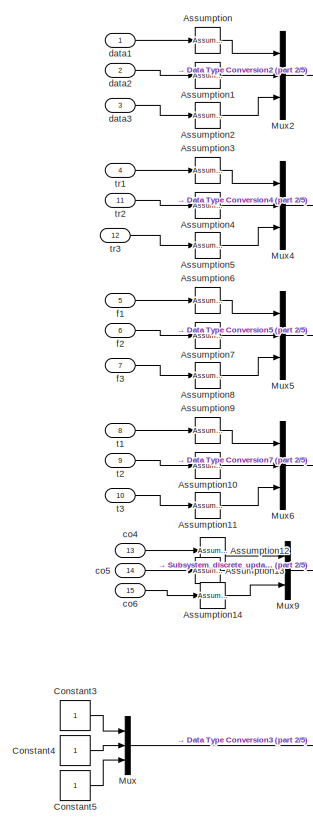
[diagram: root canvas - part 1/5, left side, full height]
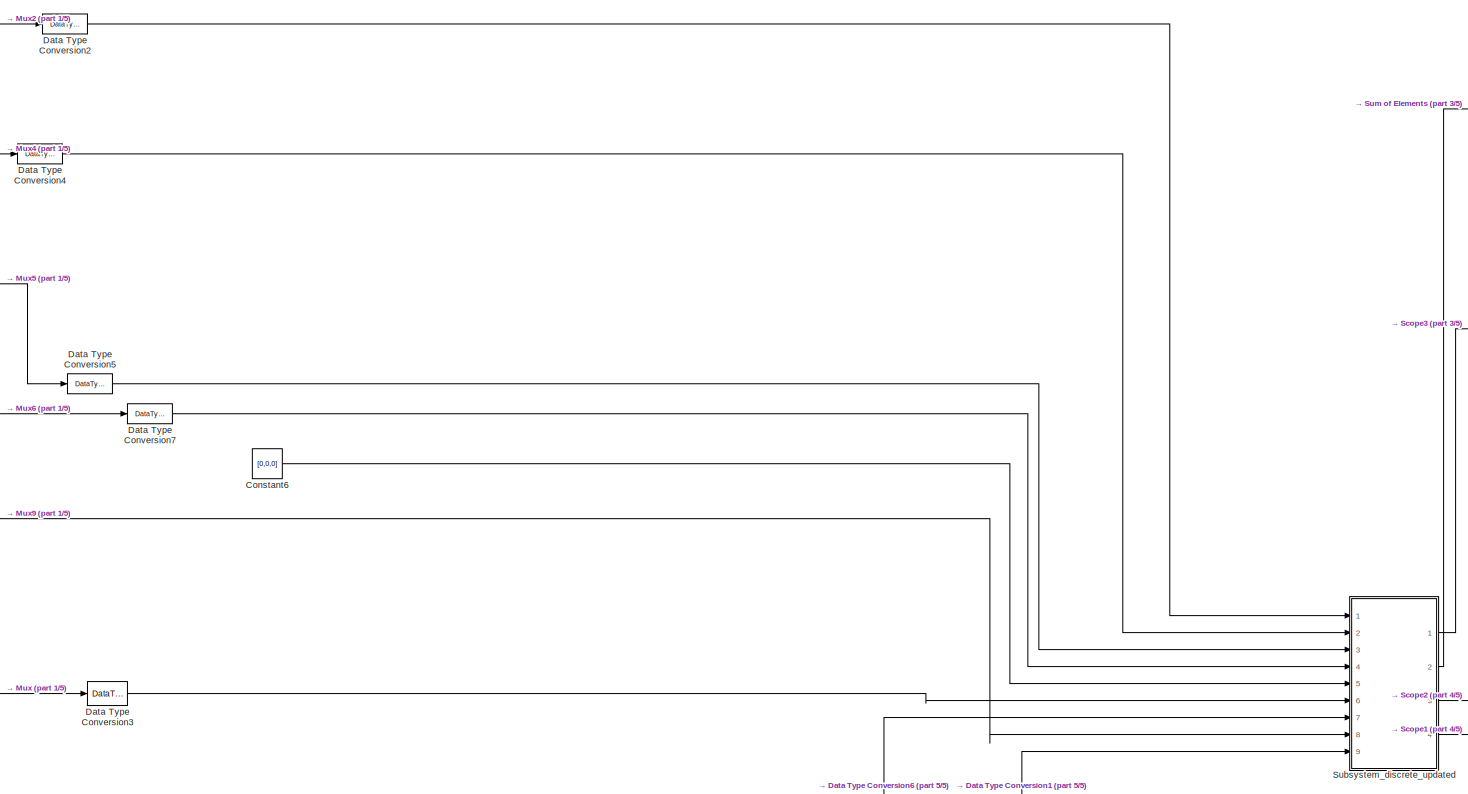
[diagram: root canvas - part 2/5, central region]
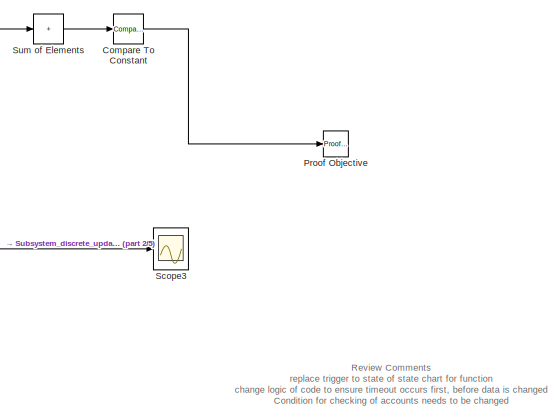
[diagram: root canvas - part 3/5, top right region]
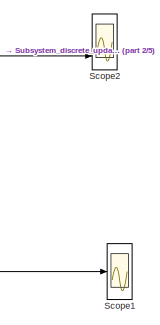
[diagram: root canvas - part 4/5, bottom right region]
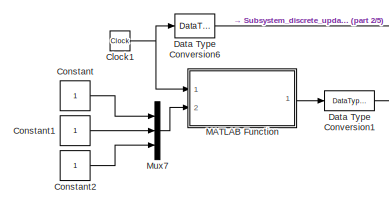
[diagram: root canvas - part 5/5, bottom left region]
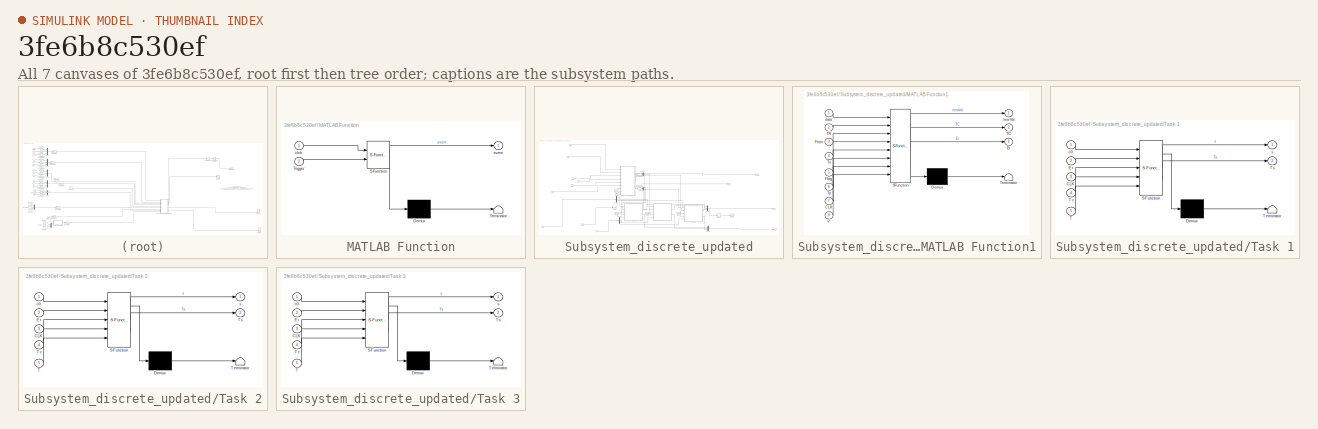
[diagram: thumbnail index - all 7 canvases of the model, root first then tree order]
MODEL slx_3fe6b8c530ef
KIND model
CONFIG AbsTol = auto
CONFIG EnableMultiTasking = off
CONFIG FixedStep = 1
CONFIG MaxStep = auto
CONFIG MinStep = auto
CONFIG RelTol = 1e-3
CONFIG SampleTimeConstraint = Unconstrained
CONFIG SolverName = FixedStepDiscrete
CONFIG StartTime = 0.0
CONFIG StopTime = 10.0
BLOCK [Reference] Assumption  REF=sldvlib/Objectives and Constraints/Assumption
  AttributesFormatString = %<intervals>
  NameLocation = top
  Ports = [1, 1]
  SourceBlock = sldvlib/Objectives and Constraints/Assumption
  SourceProductBaseCode = SL
  SourceType = Design Verifier Assumption
BLOCK [Reference] Assumption1  REF=sldvlib/Objectives and Constraints/Assumption
  AttributesFormatString = %<intervals>
  NameLocation = top
  Ports = [1, 1]
  SourceBlock = sldvlib/Objectives and Constraints/Assumption
  SourceProductBaseCode = SL
  SourceType = Design Verifier Assumption
BLOCK [Reference] Assumption10  REF=sldvlib/Objectives and Constraints/Assumption
  AttributesFormatString = %<intervals>
  NameLocation = top
  Ports = [1, 1]
  SourceBlock = sldvlib/Objectives and Constraints/Assumption
  SourceProductBaseCode = SL
  SourceType = Design Verifier Assumption
BLOCK [Reference] Assumption11  REF=sldvlib/Objectives and Constraints/Assumption
  AttributesFormatString = %<intervals>
  NameLocation = top
  Ports = [1, 1]
  SourceBlock = sldvlib/Objectives and Constraints/Assumption
  SourceProductBaseCode = SL
  SourceType = Design Verifier Assumption
BLOCK [Reference] Assumption12  REF=sldvlib/Objectives and Constraints/Assumption
  AttributesFormatString = %<intervals>
  NameLocation = top
  Ports = [1, 1]
  SourceBlock = sldvlib/Objectives and Constraints/Assumption
  SourceProductBaseCode = SL
  SourceType = Design Verifier Assumption
BLOCK [Reference] Assumption13  REF=sldvlib/Objectives and Constraints/Assumption
  AttributesFormatString = %<intervals>
  NameLocation = top
  Ports = [1, 1]
  SourceBlock = sldvlib/Objectives and Constraints/Assumption
  SourceProductBaseCode = SL
  SourceType = Design Verifier Assumption
BLOCK [Reference] Assumption14  REF=sldvlib/Objectives and Constraints/Assumption
  AttributesFormatString = %<intervals>
  NameLocation = top
  Ports = [1, 1]
  SourceBlock = sldvlib/Objectives and Constraints/Assumption
  SourceProductBaseCode = SL
  SourceType = Design Verifier Assumption
BLOCK [Reference] Assumption2  REF=sldvlib/Objectives and Constraints/Assumption
  AttributesFormatString = %<intervals>
  NameLocation = top
  Ports = [1, 1]
  SourceBlock = sldvlib/Objectives and Constraints/Assumption
  SourceProductBaseCode = SL
  SourceType = Design Verifier Assumption
BLOCK [Reference] Assumption3  REF=sldvlib/Objectives and Constraints/Assumption
  AttributesFormatString = %<intervals>
  NameLocation = top
  Ports = [1, 1]
  SourceBlock = sldvlib/Objectives and Constraints/Assumption
  SourceProductBaseCode = SL
  SourceType = Design Verifier Assumption
BLOCK [Reference] Assumption4  REF=sldvlib/Objectives and Constraints/Assumption
  AttributesFormatString = %<intervals>
  NameLocation = top
  Ports = [1, 1]
  SourceBlock = sldvlib/Objectives and Constraints/Assumption
  SourceProductBaseCode = SL
  SourceType = Design Verifier Assumption
BLOCK [Reference] Assumption5  REF=sldvlib/Objectives and Constraints/Assumption
  AttributesFormatString = %<intervals>
  NameLocation = top
  Ports = [1, 1]
  SourceBlock = sldvlib/Objectives and Constraints/Assumption
  SourceProductBaseCode = SL
  SourceType = Design Verifier Assumption
BLOCK [Reference] Assumption6  REF=sldvlib/Objectives and Constraints/Assumption
  AttributesFormatString = %<intervals>
  NameLocation = top
  Ports = [1, 1]
  SourceBlock = sldvlib/Objectives and Constraints/Assumption
  SourceProductBaseCode = SL
  SourceType = Design Verifier Assumption
BLOCK [Reference] Assumption7  REF=sldvlib/Objectives and Constraints/Assumption
  AttributesFormatString = %<intervals>
  NameLocation = top
  Ports = [1, 1]
  SourceBlock = sldvlib/Objectives and Constraints/Assumption
  SourceProductBaseCode = SL
  SourceType = Design Verifier Assumption
BLOCK [Reference] Assumption8  REF=sldvlib/Objectives and Constraints/Assumption
  AttributesFormatString = %<intervals>
  NameLocation = top
  Ports = [1, 1]
  SourceBlock = sldvlib/Objectives and Constraints/Assumption
  SourceProductBaseCode = SL
  SourceType = Design Verifier Assumption
BLOCK [Reference] Assumption9  REF=sldvlib/Objectives and Constraints/Assumption
  AttributesFormatString = %<intervals>
  NameLocation = top
  Ports = [1, 1]
  SourceBlock = sldvlib/Objectives and Constraints/Assumption
  SourceProductBaseCode = SL
  SourceType = Design Verifier Assumption
BLOCK [Clock] Clock1
BLOCK [Reference] Compare To Constant  REF=simulink/Logic and Bit
Operations/Compare
To Constant
  Ports = [1, 1]
  SourceBlock = simulink/Logic and Bit\nOperations/Compare\nTo Constant
  SourceProductBaseCode = SL
  SourceType = Compare To Constant
BLOCK [Constant] Constant
BLOCK [Constant] Constant1
BLOCK [Constant] Constant2
BLOCK [Constant] Constant3
BLOCK [Constant] Constant4
BLOCK [Constant] Constant5
BLOCK [Constant] Constant6
  Value = [0,0,0]
BLOCK [DataTypeConversion] Data Type Conversion1
  OutDataTypeStr = boolean
  RndMeth = Round
  SaturateOnIntegerOverflow = off
BLOCK [DataTypeConversion] Data Type Conversion2
  OutDataTypeStr = double
  RndMeth = Round
  SaturateOnIntegerOverflow = off
BLOCK [DataTypeConversion] Data Type Conversion3
  OutDataTypeStr = uint16
  RndMeth = Round
  SaturateOnIntegerOverflow = off
BLOCK [DataTypeConversion] Data Type Conversion4
  OutDataTypeStr = double
  RndMeth = Round
  SaturateOnIntegerOverflow = off
BLOCK [DataTypeConversion] Data Type Conversion5
  OutDataTypeStr = double
  RndMeth = Round
  SaturateOnIntegerOverflow = off
BLOCK [DataTypeConversion] Data Type Conversion6
  OutDataTypeStr = uint16
  RndMeth = Round
  SaturateOnIntegerOverflow = off
BLOCK [DataTypeConversion] Data Type Conversion7
  OutDataTypeStr = double
  RndMeth = Round
  SaturateOnIntegerOverflow = off
BLOCK [SubSystem] MATLAB Function
  ErrorFcn = Stateflow.Translate.translate
  PermitHierarchicalResolution = ExplicitOnly
  Ports = [2, 1]
  RequestExecContextInheritance = off
  SFBlockType = MATLAB Function
  TreatAsAtomicUnit = on
BLOCK [Demux] MATLAB Function/ Demux 
  Outputs = 1
  Ports = [1, 1]
BLOCK [S-Function] MATLAB Function/ SFunction 
  EnableBusSupport = on
  FunctionName = sf_sfun
  PortCounts = [2 2]
  Ports = [2, 2]
  SFcnIsStateOwnerBlock = off
  SFunctionDeploymentMode = off
  Tag = Stateflow S-Function 2
BLOCK [Terminator] MATLAB Function/ Terminator 
BLOCK [Inport] MATLAB Function/Trigger
  Port = 2
BLOCK [Inport] MATLAB Function/clck
BLOCK [Outport] MATLAB Function/event
BLOCK [Mux] Mux
  DisplayOption = bar
  Inputs = 3
  Ports = [3, 1]
BLOCK [Mux] Mux2
  DisplayOption = bar
  Inputs = 3
  Ports = [3, 1]
BLOCK [Mux] Mux4
  DisplayOption = bar
  Inputs = 3
  Ports = [3, 1]
BLOCK [Mux] Mux5
  DisplayOption = bar
  Inputs = 3
  Ports = [3, 1]
BLOCK [Mux] Mux6
  DisplayOption = bar
  Inputs = 3
  Ports = [3, 1]
BLOCK [Mux] Mux7
  DisplayOption = bar
  Inputs = 3
  Ports = [3, 1]
BLOCK [Mux] Mux9
  DisplayOption = bar
  Inputs = 3
  Ports = [3, 1]
BLOCK [Reference] Proof Objective  REF=sldvlib/Objectives and Constraints/Proof Objective
  AttributesFormatString = %<intervals>
  NameLocation = top
  Ports = [1]
  SourceBlock = sldvlib/Objectives and Constraints/Proof Objective
  SourceProductBaseCode = SL
  SourceType = Design Verifier Proof Objective
BLOCK [Scope] Scope1
  Floating = off
  NumInputPorts = 3
  Ports = [3]
  ScopeSpecificationString = Simulink.scopes.TimeScopeBlockCfg('CurrentConfiguration', extmgr.ConfigurationSet(extmgr.Configuration('Core','General UI',true),extmgr.Configuration('Core','Source UI',true),extmgr.Configuration('Sources','WiredSimulink',true,'DataLoggingVariableName','ScopeData1'),extmgr.Configuration('Visuals','Time Domain',true,'SerializedDisplays',{struct('MinYLimReal','-0.125','MaxYLimReal','1.125','YLabelRe...<+1515ch>
BLOCK [Scope] Scope2
  Floating = off
  NumInputPorts = 3
  Ports = [3]
  ScopeSpecificationString = Simulink.scopes.TimeScopeBlockCfg('CurrentConfiguration', extmgr.ConfigurationSet(extmgr.Configuration('Core','General UI',true),extmgr.Configuration('Core','Source UI',true),extmgr.Configuration('Sources','WiredSimulink',true,'DataLoggingVariableName','ScopeData2'),extmgr.Configuration('Visuals','Time Domain',true,'SerializedDisplays',{struct('MinYLimReal','-0.125','MaxYLimReal','1.125','YLabelRe...<+1446ch>
BLOCK [Scope] Scope3
  Floating = off
  NumInputPorts = 1
  Ports = [1]
  ScopeSpecificationString = Simulink.scopes.TimeScopeBlockCfg('CurrentConfiguration', extmgr.ConfigurationSet(extmgr.Configuration('Core','General UI',true),extmgr.Configuration('Core','Source UI',true),extmgr.Configuration('Sources','WiredSimulink',true,'DataLoggingVariableName','ScopeData3'),extmgr.Configuration('Visuals','Time Domain',true,'SerializedDisplays',{struct('MinYLimReal','-1.00000','MaxYLimReal','1.00000','YLab...<+1467ch>
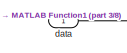
[diagram: Subsystem_discrete_updated - part 1/8, top left region]
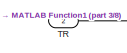
[diagram: Subsystem_discrete_updated - part 2/8, top left region]
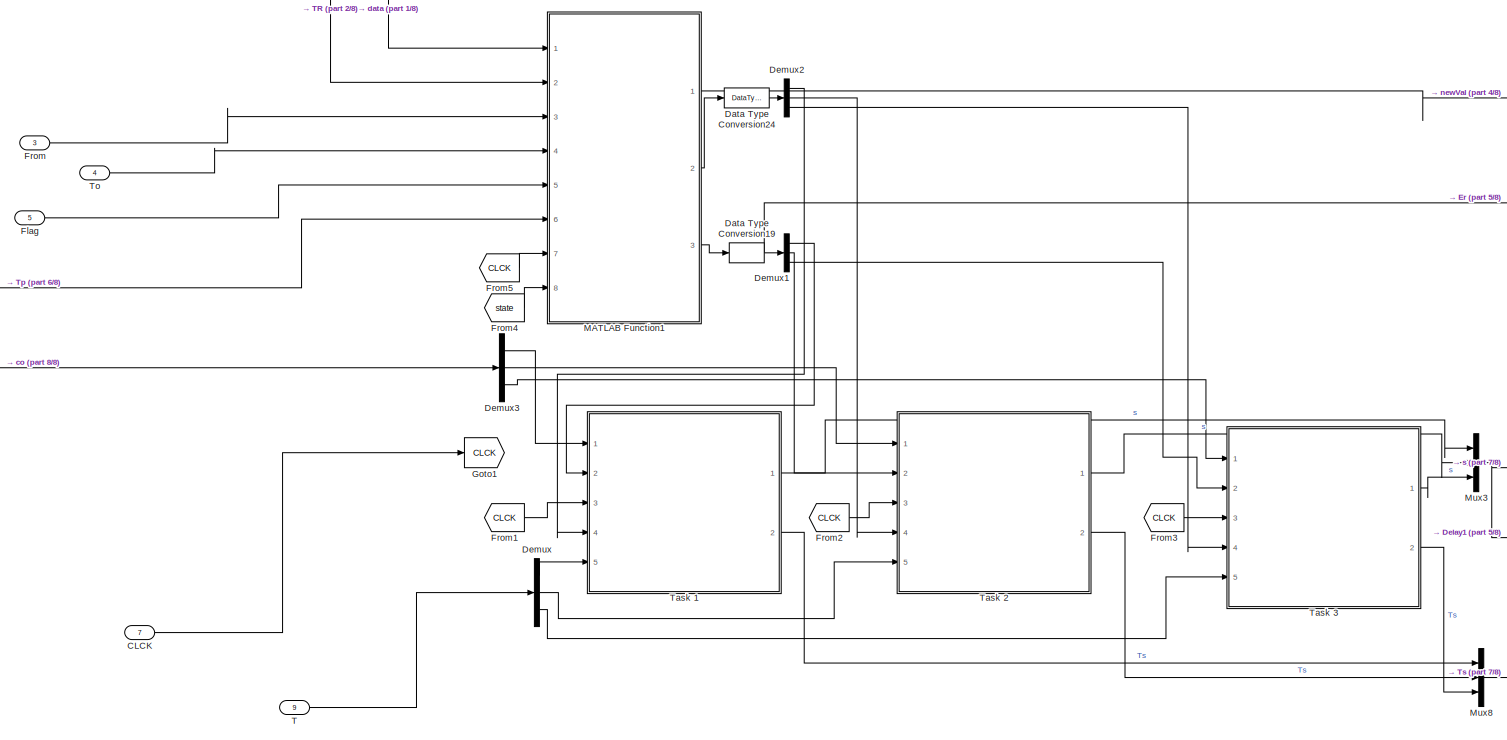
[diagram: Subsystem_discrete_updated - part 3/8, center side, full height]
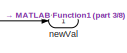
[diagram: Subsystem_discrete_updated - part 4/8, middle right region]
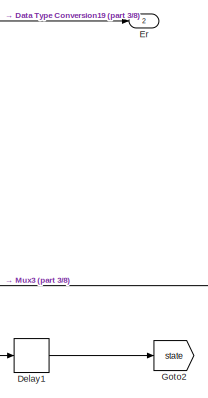
[diagram: Subsystem_discrete_updated - part 5/8, middle right region]
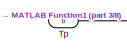
[diagram: Subsystem_discrete_updated - part 6/8, middle left region]
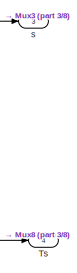
[diagram: Subsystem_discrete_updated - part 7/8, bottom right region]
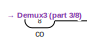
[diagram: Subsystem_discrete_updated - part 8/8, bottom left region]
BLOCK [SubSystem] Subsystem_discrete_updated
  Ports = [9, 4]
  RequestExecContextInheritance = off
BLOCK [Inport] Subsystem_discrete_updated/CLCK
  Port = 7
BLOCK [DataTypeConversion] Subsystem_discrete_updated/Data Type Conversion19
  OutDataTypeStr = uint16
  RndMeth = Round
  SaturateOnIntegerOverflow = off
BLOCK [DataTypeConversion] Subsystem_discrete_updated/Data Type Conversion24
  OutDataTypeStr = boolean
  RndMeth = Round
  SaturateOnIntegerOverflow = off
BLOCK [Delay] Subsystem_discrete_updated/Delay1
  DelayLength = 1
  InputPortMap = u0
  Ports = [1, 1]
BLOCK [Demux] Subsystem_discrete_updated/Demux
  Outputs = 3
  Ports = [1, 3]
BLOCK [Demux] Subsystem_discrete_updated/Demux1
  Outputs = 3
  Ports = [1, 3]
BLOCK [Demux] Subsystem_discrete_updated/Demux2
  Outputs = 3
  Ports = [1, 3]
BLOCK [Demux] Subsystem_discrete_updated/Demux3
  Outputs = 3
  Ports = [1, 3]
BLOCK [Outport] Subsystem_discrete_updated/Er
  Port = 2
BLOCK [Inport] Subsystem_discrete_updated/Flag
  Port = 5
BLOCK [Inport] Subsystem_discrete_updated/From
  Port = 3
BLOCK [From] Subsystem_discrete_updated/From1
  GotoTag = CLCK
BLOCK [From] Subsystem_discrete_updated/From2
  GotoTag = CLCK
BLOCK [From] Subsystem_discrete_updated/From3
  GotoTag = CLCK
BLOCK [From] Subsystem_discrete_updated/From4
  GotoTag = state
BLOCK [From] Subsystem_discrete_updated/From5
  GotoTag = CLCK
BLOCK [Goto] Subsystem_discrete_updated/Goto1
  GotoTag = CLCK
BLOCK [Goto] Subsystem_discrete_updated/Goto2
  GotoTag = state
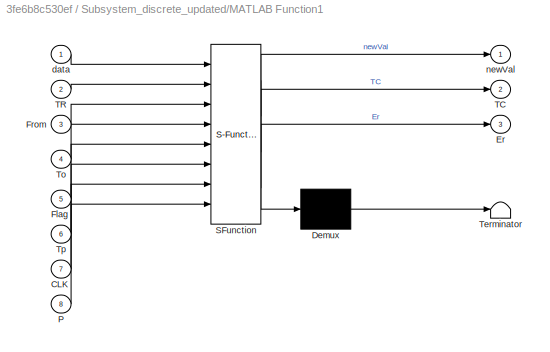
BLOCK [SubSystem] Subsystem_discrete_updated/MATLAB Function1
  ErrorFcn = Stateflow.Translate.translate
  PermitHierarchicalResolution = ExplicitOnly
  Ports = [8, 3]
  RequestExecContextInheritance = off
  SFBlockType = MATLAB Function
  TreatAsAtomicUnit = on
BLOCK [Demux] Subsystem_discrete_updated/MATLAB Function1/ Demux 
  Outputs = 1
  Ports = [1, 1]
BLOCK [S-Function] Subsystem_discrete_updated/MATLAB Function1/ SFunction 
  EnableBusSupport = on
  FunctionName = sf_sfun
  PortCounts = [8 4]
  Ports = [8, 4]
  SFcnIsStateOwnerBlock = off
  SFunctionDeploymentMode = off
  Tag = Stateflow S-Function 6
BLOCK [Terminator] Subsystem_discrete_updated/MATLAB Function1/ Terminator 
BLOCK [Inport] Subsystem_discrete_updated/MATLAB Function1/CLK
  Port = 7
BLOCK [Outport] Subsystem_discrete_updated/MATLAB Function1/Er
  Port = 3
BLOCK [Inport] Subsystem_discrete_updated/MATLAB Function1/Flag
  Port = 5
BLOCK [Inport] Subsystem_discrete_updated/MATLAB Function1/From
  Port = 3
BLOCK [Inport] Subsystem_discrete_updated/MATLAB Function1/P
  Port = 8
BLOCK [Outport] Subsystem_discrete_updated/MATLAB Function1/TC
  Port = 2
BLOCK [Inport] Subsystem_discrete_updated/MATLAB Function1/TR
  Port = 2
BLOCK [Inport] Subsystem_discrete_updated/MATLAB Function1/To
  Port = 4
BLOCK [Inport] Subsystem_discrete_updated/MATLAB Function1/Tp
  Port = 6
BLOCK [Inport] Subsystem_discrete_updated/MATLAB Function1/data
BLOCK [Outport] Subsystem_discrete_updated/MATLAB Function1/newVal
BLOCK [Mux] Subsystem_discrete_updated/Mux3
  DisplayOption = bar
  Inputs = 3
  Ports = [3, 1]
BLOCK [Mux] Subsystem_discrete_updated/Mux8
  DisplayOption = bar
  Inputs = 3
  Ports = [3, 1]
BLOCK [Inport] Subsystem_discrete_updated/T
  Port = 9
BLOCK [Inport] Subsystem_discrete_updated/TR
  Port = 2
BLOCK [SubSystem] Subsystem_discrete_updated/Task 1
  ErrorFcn = Stateflow.Translate.translate
  PermitHierarchicalResolution = ExplicitOnly
  Ports = [5, 2]
  RequestExecContextInheritance = off
  SFBlockType = Chart
  TreatAsAtomicUnit = on
BLOCK [Demux] Subsystem_discrete_updated/Task 1/ Demux 
  Outputs = 1
  Ports = [1, 1]
BLOCK [S-Function] Subsystem_discrete_updated/Task 1/ SFunction 
  EnableBusSupport = on
  FunctionName = sf_sfun
  PortCounts = [5 3]
  Ports = [5, 3]
  SFcnIsStateOwnerBlock = off
  SFunctionDeploymentMode = off
  Tag = Stateflow S-Function 7
BLOCK [Terminator] Subsystem_discrete_updated/Task 1/ Terminator 
BLOCK [Inport] Subsystem_discrete_updated/Task 1/CLK
  Port = 3
BLOCK [Inport] Subsystem_discrete_updated/Task 1/Er
  Port = 2
BLOCK [Inport] Subsystem_discrete_updated/Task 1/T
  Port = 5
BLOCK [Inport] Subsystem_discrete_updated/Task 1/Tc
  Port = 4
BLOCK [Outport] Subsystem_discrete_updated/Task 1/Ts
  Port = 2
BLOCK [Inport] Subsystem_discrete_updated/Task 1/c0
BLOCK [Outport] Subsystem_discrete_updated/Task 1/s
BLOCK [SubSystem] Subsystem_discrete_updated/Task 2
  ErrorFcn = Stateflow.Translate.translate
  PermitHierarchicalResolution = ExplicitOnly
  Ports = [5, 2]
  RequestExecContextInheritance = off
  SFBlockType = Chart
  TreatAsAtomicUnit = on
BLOCK [Demux] Subsystem_discrete_updated/Task 2/ Demux 
  Outputs = 1
  Ports = [1, 1]
BLOCK [S-Function] Subsystem_discrete_updated/Task 2/ SFunction 
  EnableBusSupport = on
  FunctionName = sf_sfun
  PortCounts = [5 3]
  Ports = [5, 3]
  SFcnIsStateOwnerBlock = off
  SFunctionDeploymentMode = off
  Tag = Stateflow S-Function 8
BLOCK [Terminator] Subsystem_discrete_updated/Task 2/ Terminator 
BLOCK [Inport] Subsystem_discrete_updated/Task 2/CLK
  Port = 3
BLOCK [Inport] Subsystem_discrete_updated/Task 2/Er
  Port = 2
BLOCK [Inport] Subsystem_discrete_updated/Task 2/T
  Port = 5
BLOCK [Inport] Subsystem_discrete_updated/Task 2/Tc
  Port = 4
BLOCK [Outport] Subsystem_discrete_updated/Task 2/Ts
  Port = 2
BLOCK [Inport] Subsystem_discrete_updated/Task 2/c0
BLOCK [Outport] Subsystem_discrete_updated/Task 2/s
BLOCK [SubSystem] Subsystem_discrete_updated/Task 3
  ErrorFcn = Stateflow.Translate.translate
  PermitHierarchicalResolution = ExplicitOnly
  Ports = [5, 2]
  RequestExecContextInheritance = off
  SFBlockType = Chart
  TreatAsAtomicUnit = on
BLOCK [Demux] Subsystem_discrete_updated/Task 3/ Demux 
  Outputs = 1
  Ports = [1, 1]
BLOCK [S-Function] Subsystem_discrete_updated/Task 3/ SFunction 
  EnableBusSupport = on
  FunctionName = sf_sfun
  PortCounts = [5 3]
  Ports = [5, 3]
  SFcnIsStateOwnerBlock = off
  SFunctionDeploymentMode = off
  Tag = Stateflow S-Function 9
BLOCK [Terminator] Subsystem_discrete_updated/Task 3/ Terminator 
BLOCK [Inport] Subsystem_discrete_updated/Task 3/CLK
  Port = 3
BLOCK [Inport] Subsystem_discrete_updated/Task 3/Er
  Port = 2
BLOCK [Inport] Subsystem_discrete_updated/Task 3/T
  Port = 5
BLOCK [Inport] Subsystem_discrete_updated/Task 3/Tc
  Port = 4
BLOCK [Outport] Subsystem_discrete_updated/Task 3/Ts
  Port = 2
BLOCK [Inport] Subsystem_discrete_updated/Task 3/c0
BLOCK [Outport] Subsystem_discrete_updated/Task 3/s
BLOCK [Inport] Subsystem_discrete_updated/To
  Port = 4
BLOCK [Inport] Subsystem_discrete_updated/Tp
  Port = 6
BLOCK [Outport] Subsystem_discrete_updated/Ts
  Port = 4
BLOCK [Inport] Subsystem_discrete_updated/co
  Port = 8
BLOCK [Inport] Subsystem_discrete_updated/data
BLOCK [Outport] Subsystem_discrete_updated/newVal
BLOCK [Outport] Subsystem_discrete_updated/s
  Port = 3
BLOCK [Sum] Sum of Elements
  IconShape = rectangular
  Inputs = +
  Ports = [1, 1]
BLOCK [Inport] co4
  Port = 13
BLOCK [Inport] co5
  Port = 14
BLOCK [Inport] co6
  Port = 15
BLOCK [Inport] data1
  OutDataTypeStr = uint16
BLOCK [Inport] data2
  OutDataTypeStr = uint16
  Port = 2
BLOCK [Inport] data3
  OutDataTypeStr = uint16
  Port = 3
BLOCK [Inport] f1
  LockScale = on
  OutDataTypeStr = uint16
  Port = 5
BLOCK [Inport] f2
  OutDataTypeStr = uint16
  Port = 6
BLOCK [Inport] f3
  OutDataTypeStr = uint16
  Port = 7
BLOCK [Inport] t1
  OutDataTypeStr = uint16
  Port = 8
BLOCK [Inport] t2
  OutDataTypeStr = uint16
  Port = 9
BLOCK [Inport] t3
  OutDataTypeStr = uint16
  Port = 10
BLOCK [Inport] tr1
  OutDataTypeStr = double
  Port = 4
BLOCK [Inport] tr2
  OutDataTypeStr = double
  Port = 11
BLOCK [Inport] tr3
  OutDataTypeStr = double
  Port = 12
ANNOTATION (root): Review Comments replace trigger to state of state chart for function change logic of code to ensure timeout occurs first, before data is changed Condition for checking of accounts needs to be changed
LINE Assumption10:1 -> Mux6:2
LINE Assumption11:1 -> Mux6:3
LINE Assumption12:1 -> Mux9:1
LINE Assumption13:1 -> Mux9:2
LINE Assumption14:1 -> Mux9:3
LINE Assumption1:1 -> Mux2:2
LINE Assumption2:1 -> Mux2:3
LINE Assumption3:1 -> Mux4:1
LINE Assumption4:1 -> Mux4:2
LINE Assumption5:1 -> Mux4:3
LINE Assumption6:1 -> Mux5:1
LINE Assumption7:1 -> Mux5:2
LINE Assumption8:1 -> Mux5:3
LINE Assumption9:1 -> Mux6:1
LINE Assumption:1 -> Mux2:1
NET Clock1:1 -> Data Type Conversion6:1, MATLAB Function:1
LINE Compare To Constant:1 -> Proof Objective:1
LINE Constant1:1 -> Mux7:2
LINE Constant2:1 -> Mux7:3
LINE Constant3:1 -> Mux:1
LINE Constant4:1 -> Mux:2
LINE Constant5:1 -> Mux:3
LINE Constant6:1 -> Subsystem_discrete_updated:5
LINE Constant:1 -> Mux7:1
LINE Data Type Conversion1:1 -> Subsystem_discrete_updated:9
LINE Data Type Conversion2:1 -> Subsystem_discrete_updated:1
LINE Data Type Conversion3:1 -> Subsystem_discrete_updated:6
LINE Data Type Conversion4:1 -> Subsystem_discrete_updated:2
LINE Data Type Conversion5:1 -> Subsystem_discrete_updated:3
LINE Data Type Conversion6:1 -> Subsystem_discrete_updated:7
LINE Data Type Conversion7:1 -> Subsystem_discrete_updated:4
LINE MATLAB Function:1 -> Data Type Conversion1:1
LINE Mux2:1 -> Data Type Conversion2:1
LINE Mux4:1 -> Data Type Conversion4:1
LINE Mux5:1 -> Data Type Conversion5:1
LINE Mux6:1 -> Data Type Conversion7:1
LINE Mux7:1 -> MATLAB Function:2
LINE Mux9:1 -> Subsystem_discrete_updated:8
LINE Mux:1 -> Data Type Conversion3:1
LINE Subsystem_discrete_updated/CLCK:1 -> Subsystem_discrete_updated/Goto1:1
NET Subsystem_discrete_updated/Data Type Conversion19:1 -> Subsystem_discrete_updated/Demux1:1, Subsystem_discrete_updated/Er:1
LINE Subsystem_discrete_updated/Data Type Conversion24:1 -> Subsystem_discrete_updated/Demux2:1
LINE Subsystem_discrete_updated/Delay1:1 -> Subsystem_discrete_updated/Goto2:1
LINE Subsystem_discrete_updated/Demux1:1 -> Subsystem_discrete_updated/Task 1:2
LINE Subsystem_discrete_updated/Demux1:2 -> Subsystem_discrete_updated/Task 2:2
LINE Subsystem_discrete_updated/Demux1:3 -> Subsystem_discrete_updated/Task 3:2
LINE Subsystem_discrete_updated/Demux2:1 -> Subsystem_discrete_updated/Task 1:4
LINE Subsystem_discrete_updated/Demux2:2 -> Subsystem_discrete_updated/Task 2:4
LINE Subsystem_discrete_updated/Demux2:3 -> Subsystem_discrete_updated/Task 3:4
LINE Subsystem_discrete_updated/Demux3:1 -> Subsystem_discrete_updated/Task 1:1
LINE Subsystem_discrete_updated/Demux3:2 -> Subsystem_discrete_updated/Task 2:1
LINE Subsystem_discrete_updated/Demux3:3 -> Subsystem_discrete_updated/Task 3:1
LINE Subsystem_discrete_updated/Demux:1 -> Subsystem_discrete_updated/Task 1:5
LINE Subsystem_discrete_updated/Demux:2 -> Subsystem_discrete_updated/Task 2:5
LINE Subsystem_discrete_updated/Demux:3 -> Subsystem_discrete_updated/Task 3:5
LINE Subsystem_discrete_updated/Flag:1 -> Subsystem_discrete_updated/MATLAB Function1:5
LINE Subsystem_discrete_updated/From1:1 -> Subsystem_discrete_updated/Task 1:3
LINE Subsystem_discrete_updated/From2:1 -> Subsystem_discrete_updated/Task 2:3
LINE Subsystem_discrete_updated/From3:1 -> Subsystem_discrete_updated/Task 3:3
LINE Subsystem_discrete_updated/From4:1 -> Subsystem_discrete_updated/MATLAB Function1:8
LINE Subsystem_discrete_updated/From5:1 -> Subsystem_discrete_updated/MATLAB Function1:7
LINE Subsystem_discrete_updated/From:1 -> Subsystem_discrete_updated/MATLAB Function1:3
LINE Subsystem_discrete_updated/MATLAB Function1:1 -> Subsystem_discrete_updated/newVal:1
LINE Subsystem_discrete_updated/MATLAB Function1:2 -> Subsystem_discrete_updated/Data Type Conversion24:1
LINE Subsystem_discrete_updated/MATLAB Function1:3 -> Subsystem_discrete_updated/Data Type Conversion19:1
NET Subsystem_discrete_updated/Mux3:1 -> Subsystem_discrete_updated/Delay1:1, Subsystem_discrete_updated/s:1
LINE Subsystem_discrete_updated/Mux8:1 -> Subsystem_discrete_updated/Ts:1
LINE Subsystem_discrete_updated/T:1 -> Subsystem_discrete_updated/Demux:1
LINE Subsystem_discrete_updated/TR:1 -> Subsystem_discrete_updated/MATLAB Function1:2
LINE Subsystem_discrete_updated/Task 1:1 -> Subsystem_discrete_updated/Mux3:1
LINE Subsystem_discrete_updated/Task 1:2 -> Subsystem_discrete_updated/Mux8:1
LINE Subsystem_discrete_updated/Task 2:1 -> Subsystem_discrete_updated/Mux3:2
LINE Subsystem_discrete_updated/Task 2:2 -> Subsystem_discrete_updated/Mux8:2
LINE Subsystem_discrete_updated/Task 3:1 -> Subsystem_discrete_updated/Mux3:3
LINE Subsystem_discrete_updated/Task 3:2 -> Subsystem_discrete_updated/Mux8:3
LINE Subsystem_discrete_updated/To:1 -> Subsystem_discrete_updated/MATLAB Function1:4
LINE Subsystem_discrete_updated/Tp:1 -> Subsystem_discrete_updated/MATLAB Function1:6
LINE Subsystem_discrete_updated/co:1 -> Subsystem_discrete_updated/Demux3:1
LINE Subsystem_discrete_updated/data:1 -> Subsystem_discrete_updated/MATLAB Function1:1
LINE Subsystem_discrete_updated:1 -> Scope3:1
LINE Subsystem_discrete_updated:2 -> Sum of Elements:1
LINE Subsystem_discrete_updated:3 -> Scope2:3
LINE Subsystem_discrete_updated:4 -> Scope1:2
LINE Sum of Elements:1 -> Compare To Constant:1
LINE co4:1 -> Assumption12:1
LINE co5:1 -> Assumption13:1
LINE co6:1 -> Assumption14:1
LINE data1:1 -> Assumption:1
LINE data2:1 -> Assumption1:1
LINE data3:1 -> Assumption2:1
LINE f1:1 -> Assumption6:1
LINE f2:1 -> Assumption7:1
LINE f3:1 -> Assumption8:1
LINE t1:1 -> Assumption9:1
LINE t2:1 -> Assumption10:1
LINE t3:1 -> Assumption11:1
LINE tr1:1 -> Assumption3:1
LINE tr2:1 -> Assumption4:1
LINE tr3:1 -> Assumption5:1
note: NET lines group one-source signal fan-out (src -> all destinations, sorted); 1:1 wires keep LINE
CHART Subsystem_discrete_updated/Task 2 states=4 transitions=6
  STATE_LABEL 'Transact\nen:\ns = 1\nTs = CLK\ndu:\nc = c+1\n'
  STATE_LABEL 'Idle\nen:\nc = 0\ns = 0\nTs = 0'
  STATE_LABEL 'Error\nen:\ns = 2'
  STATE_LABEL 'Error1\nen:\ns = 3'
CHART Subsystem_discrete_updated/Task 3 states=4 transitions=6
  STATE_LABEL 'Transact\nen:\ns = 1\nTs = CLK\ndu:\nc = c+1\n'
  STATE_LABEL 'Idle\nen:\nc = 0\ns = 0\nTs = 0'
  STATE_LABEL 'Error\nen:\ns = 2'
  STATE_LABEL 'Error1\nen:\ns = 3'
CHART MATLAB Function states=1 transitions=1
  STATE_LABEL 'eML_blk_kernel()'
  STATE_LABEL 'SCRIPT:\nfunction event = fcn(clck, Trigger)\n    event = clck==Trigger;'
CHART Subsystem_discrete_updated/MATLAB Function1 states=1 transitions=1
  STATE_LABEL 'eML_blk_kernel()'
  STATE_LABEL 'SCRIPT:\nfunction [newVal, TC, Er] = fcn(data, TR, From, To, Flag, Tp, CLK, P)\npersistent d\npersistent f\npersistent TC1\npersistent Er1\npersistent timeo\npersistent init\npersistent From1\npersistent To1\npersistent TR1\nif(isempty(From1))\n    From1 = [1;1;1];\nend\nif(isempty(To1))\n    To1 = [1;1;1];\nend\nif(isempty(TR1))\n    TR1 = [1;1;1];\nend\nif(isempty(d))\n    d = [0;0;0];\nend\nif(isempty(init))\n    init...<+956ch>'
CHART Subsystem_discrete_updated/Task 1 states=4 transitions=6
  STATE_LABEL 'Transact\nen:\ns = 1\nTs = CLK\ndu:\nc = c+1\n'
  STATE_LABEL 'Idle\nen:\nc = 0\ns = 0\nTs = 0'
  STATE_LABEL 'Error\nen:\ns = 2'
  STATE_LABEL 'Error1\nen:\ns = 3'
CHART  states=0 transitions=0
CHART  states=0 transitions=0
CHART  states=0 transitions=0
CHART  states=0 transitions=0
CHART  states=0 transitions=0
